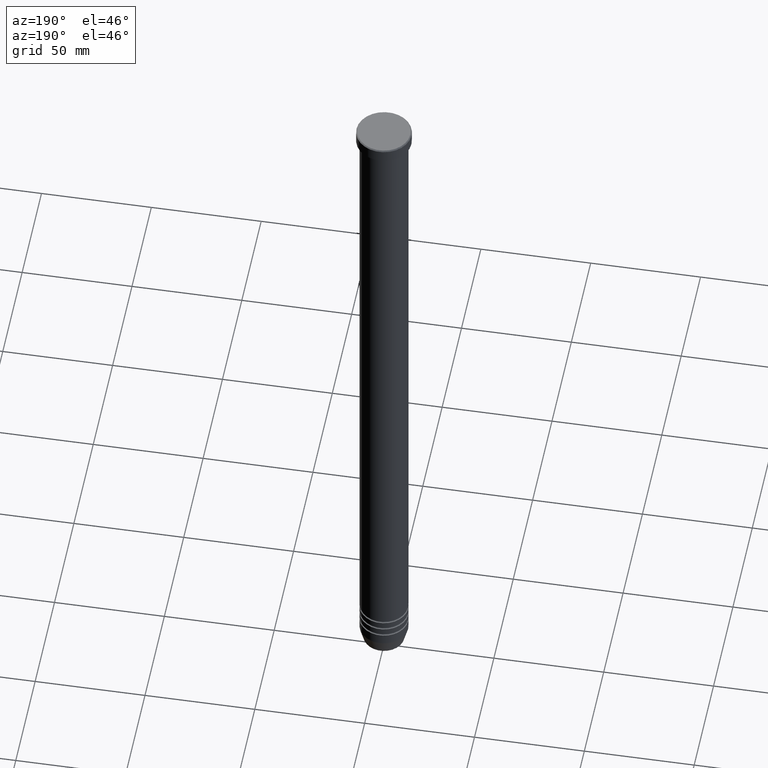
[diagram: clean part render]
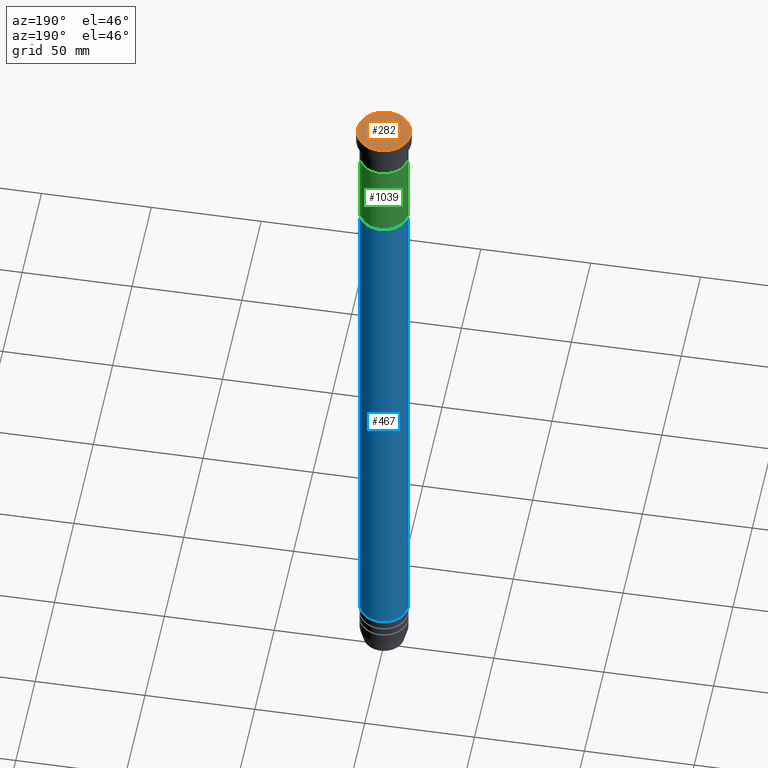
[diagram: same view with three faces highlighted in distinct colors, each labeled with its STEP entity id]
A machine part, auxiliary view with three faces highlighted in distinct colors.
Their STEP definitions:

[orange] entity #282 — the highlighted planar face has unit normal (0, -0, 1).
#88 = VERTEX_POINT ( 'NONE', #821 ) ;
#109 = VERTEX_POINT ( 'NONE', #1108 ) ;
#123 = AXIS2_PLACEMENT_3D ( 'NONE', #740, #490, #1018 ) ;
#140 = CIRCLE ( 'NONE', #470, 12.00000000000000355 ) ;
#155 = CARTESIAN_POINT ( 'NONE',  ( 0.000000000000000000, 0.000000000000000000, 0.000000000000000000 ) ) ;
#223 = CARTESIAN_POINT ( 'NONE',  ( 0.000000000000000000, 0.000000000000000000, 0.000000000000000000 ) ) ;
#253 = EDGE_LOOP ( 'NONE', ( #1119, #1101 ) ) ;
#282 = ADVANCED_FACE ( 'NONE', ( #944 ), #327, .T. ) ;
#327 = PLANE ( 'NONE',  #539 ) ;
#332 = DIRECTION ( 'NONE',  ( 1.000000000000000000, 0.000000000000000000, 0.000000000000000000 ) ) ;
#461 = EDGE_CURVE ( 'NONE', #88, #109, #140, .T. ) ;
#470 = AXIS2_PLACEMENT_3D ( 'NONE', #223, #1089, #909 ) ;
#490 = DIRECTION ( 'NONE',  ( -0.000000000000000000, -0.000000000000000000, 1.000000000000000000 ) ) ;
#539 = AXIS2_PLACEMENT_3D ( 'NONE', #155, #853, #332 ) ;
#740 = CARTESIAN_POINT ( 'NONE',  ( 0.000000000000000000, 0.000000000000000000, 0.000000000000000000 ) ) ;
#777 = EDGE_CURVE ( 'NONE', #109, #88, #1107, .T. ) ;
#821 = CARTESIAN_POINT ( 'NONE',  ( 12.00000000000000355, 1.500192328955507734E-15, 0.000000000000000000 ) ) ;
#853 = DIRECTION ( 'NONE',  ( 0.000000000000000000, -0.000000000000000000, 1.000000000000000000 ) ) ;
#909 = DIRECTION ( 'NONE',  ( 1.000000000000000000, 0.000000000000000000, 0.000000000000000000 ) ) ;
#944 = FACE_OUTER_BOUND ( 'NONE', #253, .T. ) ;
#1018 = DIRECTION ( 'NONE',  ( 1.000000000000000000, 0.000000000000000000, 0.000000000000000000 ) ) ;
#1089 = DIRECTION ( 'NONE',  ( -0.000000000000000000, -0.000000000000000000, 1.000000000000000000 ) ) ;
#1101 = ORIENTED_EDGE ( 'NONE', *, *, #461, .T. ) ;
#1107 = CIRCLE ( 'NONE', #123, 12.00000000000000355 ) ;
#1108 = CARTESIAN_POINT ( 'NONE',  ( -12.00000000000000355, 0.000000000000000000, 0.000000000000000000 ) ) ;
#1119 = ORIENTED_EDGE ( 'NONE', *, *, #777, .T. ) ;

[blue] entity #467 — the highlighted cylindrical surface (edge-blend (fillet) strip) has radius 11 mm, axis along (-0, -0, 1).
#3 = EDGE_CURVE ( 'NONE', #43, #169, #905, .T. ) ;
#36 = CARTESIAN_POINT ( 'NONE',  ( 10.99999999999999467, 0.000000000000000000, -304.9999999999999432 ) ) ;
#43 = VERTEX_POINT ( 'NONE', #36 ) ;
#93 = ORIENTED_EDGE ( 'NONE', *, *, #1052, .F. ) ;
#124 = CARTESIAN_POINT ( 'NONE',  ( -10.99999999999999645, 1.347111479062088010E-15, 0.000000000000000000 ) ) ;
#139 = AXIS2_PLACEMENT_3D ( 'NONE', #730, #496, #855 ) ;
#141 = LINE ( 'NONE', #124, #601 ) ;
#147 = ORIENTED_EDGE ( 'NONE', *, *, #161, .T. ) ;
#161 = EDGE_CURVE ( 'NONE', #43, #627, #908, .T. ) ;
#169 = VERTEX_POINT ( 'NONE', #329 ) ;
#197 = AXIS2_PLACEMENT_3D ( 'NONE', #217, #645, #651 ) ;
#217 = CARTESIAN_POINT ( 'NONE',  ( 0.000000000000000000, 0.000000000000000000, -52.00000000000000000 ) ) ;
#296 = CYLINDRICAL_SURFACE ( 'NONE', #848, 10.99999999999999645 ) ;
#329 = CARTESIAN_POINT ( 'NONE',  ( 11.00000000000000000, 0.000000000000000000, -52.00000000000000000 ) ) ;
#365 = CIRCLE ( 'NONE', #197, 11.00000000000000000 ) ;
#371 = EDGE_CURVE ( 'NONE', #627, #833, #141, .T. ) ;
#390 = DIRECTION ( 'NONE',  ( 1.000000000000000000, 0.000000000000000000, 0.000000000000000000 ) ) ;
#467 = ADVANCED_FACE ( 'NONE', ( #819 ), #296, .T. ) ;
#496 = DIRECTION ( 'NONE',  ( -0.000000000000000000, -0.000000000000000000, 1.000000000000000000 ) ) ;
#562 = DIRECTION ( 'NONE',  ( -0.000000000000000000, -0.000000000000000000, 1.000000000000000000 ) ) ;
#601 = VECTOR ( 'NONE', #665, 1000.000000000000000 ) ;
#610 = EDGE_LOOP ( 'NONE', ( #147, #642, #93, #999 ) ) ;
#627 = VERTEX_POINT ( 'NONE', #856 ) ;
#642 = ORIENTED_EDGE ( 'NONE', *, *, #371, .T. ) ;
#643 = CARTESIAN_POINT ( 'NONE',  ( 0.000000000000000000, 0.000000000000000000, 0.000000000000000000 ) ) ;
#645 = DIRECTION ( 'NONE',  ( -0.000000000000000000, -0.000000000000000000, 1.000000000000000000 ) ) ;
#651 = DIRECTION ( 'NONE',  ( 1.000000000000000000, 0.000000000000000000, 0.000000000000000000 ) ) ;
#665 = DIRECTION ( 'NONE',  ( -0.000000000000000000, -0.000000000000000000, 1.000000000000000000 ) ) ;
#730 = CARTESIAN_POINT ( 'NONE',  ( 0.000000000000000000, 0.000000000000000000, -304.9999999999999432 ) ) ;
#776 = CARTESIAN_POINT ( 'NONE',  ( -10.99999999999999822, 1.347111479062088405E-15, -52.00000000000000000 ) ) ;
#819 = FACE_OUTER_BOUND ( 'NONE', #610, .T. ) ;
#833 = VERTEX_POINT ( 'NONE', #776 ) ;
#848 = AXIS2_PLACEMENT_3D ( 'NONE', #643, #562, #390 ) ;
#855 = DIRECTION ( 'NONE',  ( 1.000000000000000000, 0.000000000000000000, 0.000000000000000000 ) ) ;
#856 = CARTESIAN_POINT ( 'NONE',  ( -10.99999999999999467, 1.347111479062087813E-15, -304.9999999999999432 ) ) ;
#905 = LINE ( 'NONE', #1003, #1102 ) ;
#908 = CIRCLE ( 'NONE', #139, 10.99999999999999467 ) ;
#924 = DIRECTION ( 'NONE',  ( -0.000000000000000000, -0.000000000000000000, 1.000000000000000000 ) ) ;
#999 = ORIENTED_EDGE ( 'NONE', *, *, #3, .F. ) ;
#1003 = CARTESIAN_POINT ( 'NONE',  ( 10.99999999999999645, 0.000000000000000000, 0.000000000000000000 ) ) ;
#1052 = EDGE_CURVE ( 'NONE', #169, #833, #365, .T. ) ;
#1102 = VECTOR ( 'NONE', #924, 1000.000000000000000 ) ;

[green] entity #1039 — the highlighted cylindrical surface (edge-blend (fillet) strip) has radius 11 mm, axis along (-0, -0, 1).
#29 = CARTESIAN_POINT ( 'NONE',  ( 0.000000000000000000, 0.000000000000000000, -52.00000000000000000 ) ) ;
#48 = AXIS2_PLACEMENT_3D ( 'NONE', #29, #916, #297 ) ;
#138 = VERTEX_POINT ( 'NONE', #1001 ) ;
#162 = CARTESIAN_POINT ( 'NONE',  ( -11.00000000000000000, 1.347111479062088405E-15, -52.00000000000000000 ) ) ;
#171 = DIRECTION ( 'NONE',  ( -0.000000000000000000, -0.000000000000000000, 1.000000000000000000 ) ) ;
#191 = CIRCLE ( 'NONE', #830, 11.00000000000000000 ) ;
#260 = VERTEX_POINT ( 'NONE', #696 ) ;
#279 = LINE ( 'NONE', #964, #543 ) ;
#297 = DIRECTION ( 'NONE',  ( 1.000000000000000000, 0.000000000000000000, 0.000000000000000000 ) ) ;
#312 = CYLINDRICAL_SURFACE ( 'NONE', #48, 11.00000000000000000 ) ;
#354 = EDGE_CURVE ( 'NONE', #527, #138, #886, .T. ) ;
#355 = LINE ( 'NONE', #359, #474 ) ;
#359 = CARTESIAN_POINT ( 'NONE',  ( -11.00000000000000000, 1.347111479062088405E-15, -52.00000000000000000 ) ) ;
#429 = EDGE_LOOP ( 'NONE', ( #1147, #462, #809, #790 ) ) ;
#462 = ORIENTED_EDGE ( 'NONE', *, *, #677, .T. ) ;
#474 = VECTOR ( 'NONE', #697, 1000.000000000000000 ) ;
#493 = DIRECTION ( 'NONE',  ( 0.000000000000000000, 0.000000000000000000, -1.000000000000000000 ) ) ;
#527 = VERTEX_POINT ( 'NONE', #162 ) ;
#543 = VECTOR ( 'NONE', #171, 1000.000000000000000 ) ;
#575 = DIRECTION ( 'NONE',  ( -1.000000000000000000, 0.000000000000000000, 0.000000000000000000 ) ) ;
#578 = CARTESIAN_POINT ( 'NONE',  ( 0.000000000000000000, 0.000000000000000000, -52.00000000000000000 ) ) ;
#617 = CARTESIAN_POINT ( 'NONE',  ( 0.000000000000000000, 0.000000000000000000, -16.00000000000000000 ) ) ;
#631 = VERTEX_POINT ( 'NONE', #676 ) ;
#639 = EDGE_CURVE ( 'NONE', #138, #260, #279, .T. ) ;
#655 = EDGE_CURVE ( 'NONE', #631, #260, #191, .T. ) ;
#677 = EDGE_CURVE ( 'NONE', #527, #631, #355, .T. ) ;
#676 = CARTESIAN_POINT ( 'NONE',  ( -11.00000000000000000, 1.347111479062088405E-15, -16.00000000000000000 ) ) ;
#696 = CARTESIAN_POINT ( 'NONE',  ( 11.00000000000000000, 0.000000000000000000, -16.00000000000000000 ) ) ;
#697 = DIRECTION ( 'NONE',  ( -0.000000000000000000, -0.000000000000000000, 1.000000000000000000 ) ) ;
#723 = AXIS2_PLACEMENT_3D ( 'NONE', #578, #493, #575 ) ;
#790 = ORIENTED_EDGE ( 'NONE', *, *, #639, .F. ) ;
#792 = DIRECTION ( 'NONE',  ( 0.000000000000000000, 0.000000000000000000, -1.000000000000000000 ) ) ;
#809 = ORIENTED_EDGE ( 'NONE', *, *, #655, .T. ) ;
#830 = AXIS2_PLACEMENT_3D ( 'NONE', #617, #792, #1067 ) ;
#886 = CIRCLE ( 'NONE', #723, 11.00000000000000000 ) ;
#916 = DIRECTION ( 'NONE',  ( -0.000000000000000000, -0.000000000000000000, 1.000000000000000000 ) ) ;
#964 = CARTESIAN_POINT ( 'NONE',  ( 11.00000000000000000, 0.000000000000000000, -52.00000000000000000 ) ) ;
#1001 = CARTESIAN_POINT ( 'NONE',  ( 11.00000000000000000, 0.000000000000000000, -52.00000000000000000 ) ) ;
#1039 = ADVANCED_FACE ( 'NONE', ( #1096 ), #312, .T. ) ;
#1067 = DIRECTION ( 'NONE',  ( -1.000000000000000000, 0.000000000000000000, 0.000000000000000000 ) ) ;
#1096 = FACE_OUTER_BOUND ( 'NONE', #429, .T. ) ;
#1147 = ORIENTED_EDGE ( 'NONE', *, *, #354, .F. ) ;